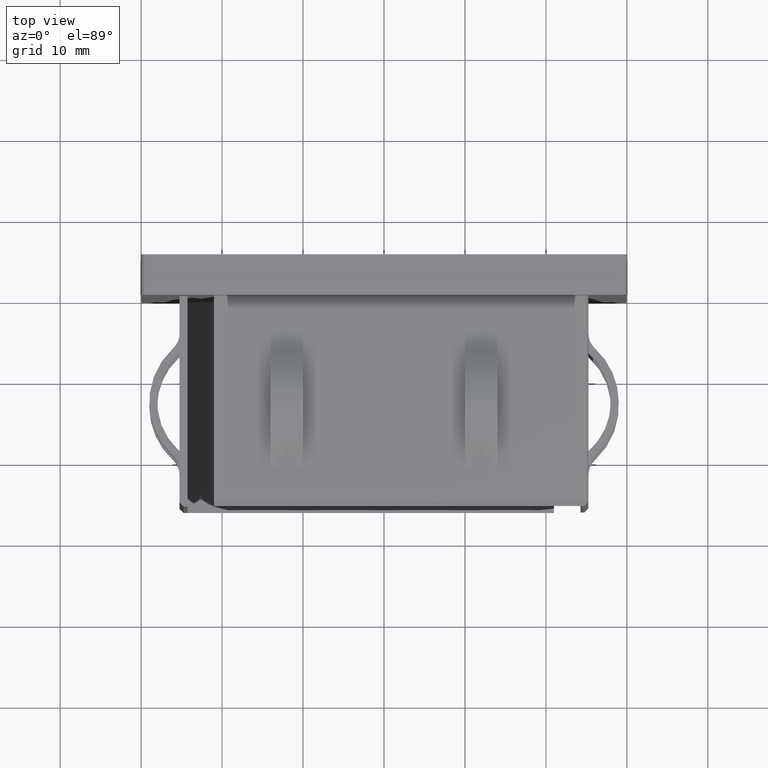
[diagram: clean part render]
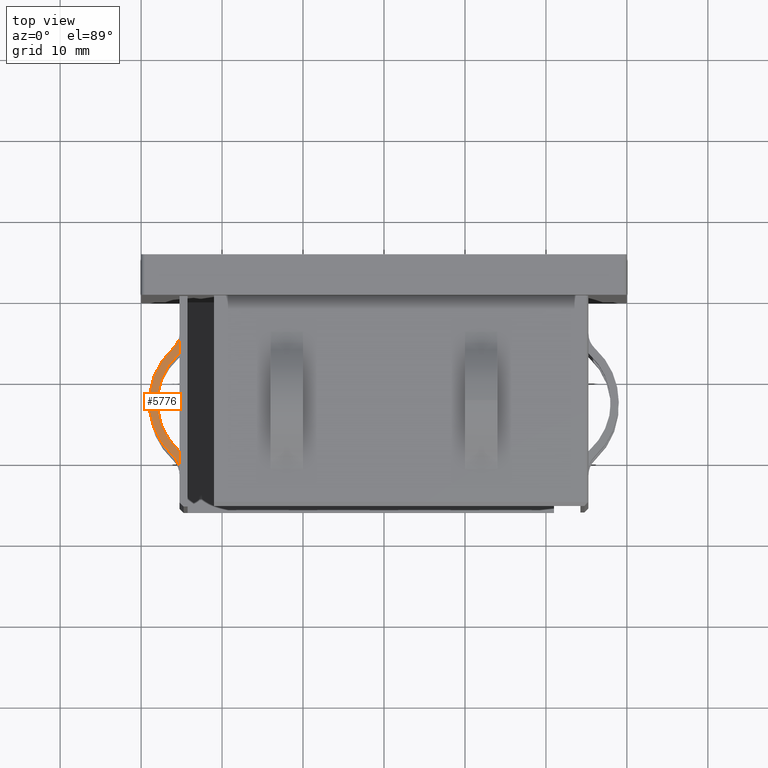
[diagram: same view with one face highlighted and labeled with its STEP entity id]
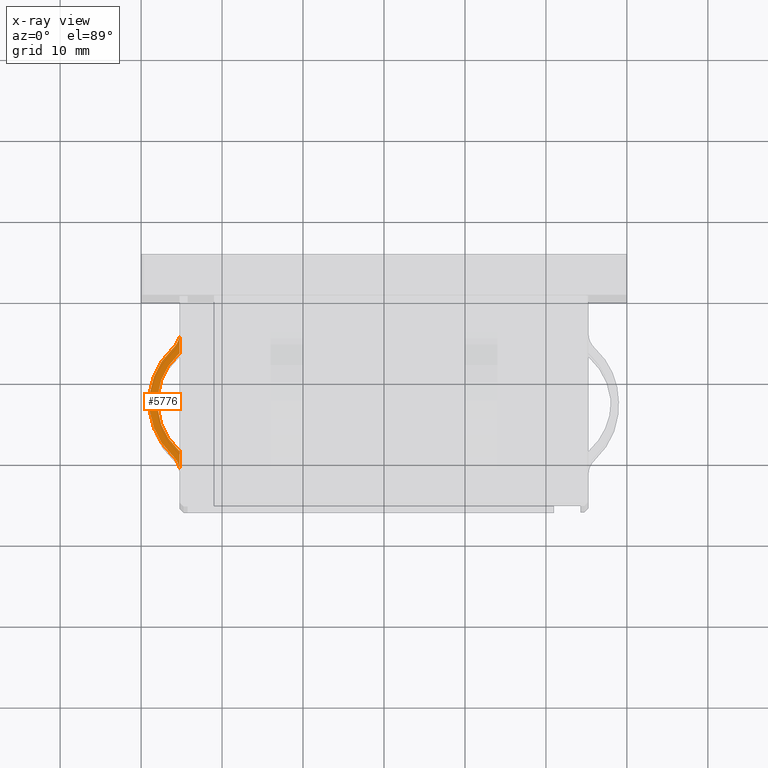
[diagram: x-ray of the same camera — body ghosted, the highlighted face saturated]
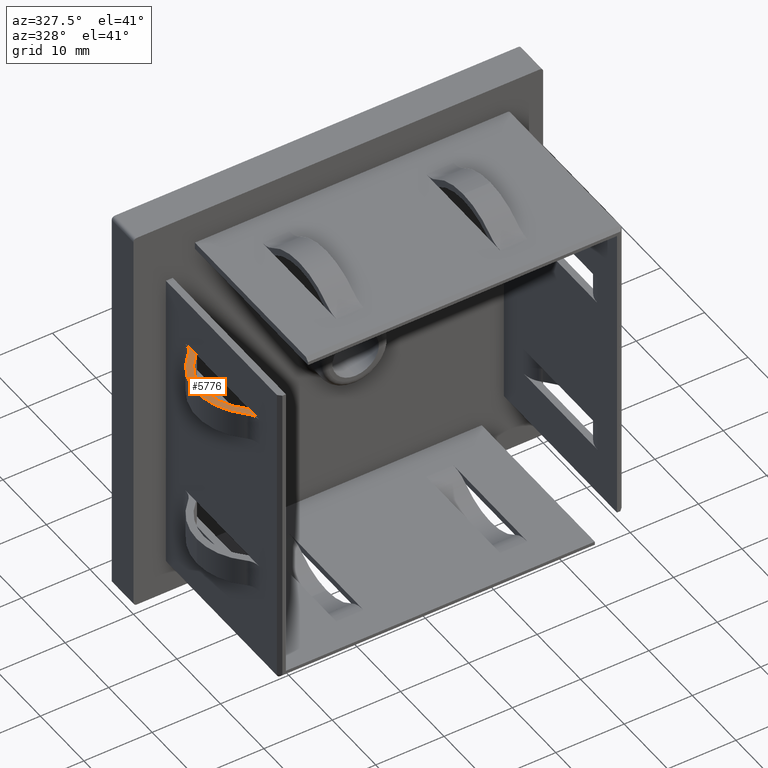
[diagram: same view with one face highlighted and labeled with its STEP entity id]
A machine part, top view. The second image highlights one B-rep face of the part: STEP entity #5776.
The next image is the same camera in x-ray: the body ghosted, the highlighted face saturated — about 0% of this face is hidden behind the body in this view.
A second angle (auxiliary view) of the same face is appended — the face is thin or edge-on in the first view.
In plain terms, the highlighted planar face has unit normal (0, 0, -1).
Its self-contained STEP definition (entity closure, byte-faithful):
#306 = CIRCLE ( 'NONE', #8349, 2.508333333333352000 ) ;
#1080 = DIRECTION ( 'NONE',  ( 2.154935995002244900E-016, 0.0000000000000000000, -1.000000000000000000 ) ) ;
#1129 = CARTESIAN_POINT ( 'NONE',  ( -25.24999999999999600, -4.500000000000000900, 13.99999999999999500 ) ) ;
#1685 = CARTESIAN_POINT ( 'NONE',  ( -25.39319333816076700, -18.90876176683562100, 13.99999999999999500 ) ) ;
#2529 = DIRECTION ( 'NONE',  ( 0.0000000000000000000, 1.000000000000000000, 0.0000000000000000000 ) ) ;
#2728 = EDGE_CURVE ( 'NONE', #8580, #12262, #7884, .T. ) ;
#3022 = EDGE_CURVE ( 'NONE', #5822, #14721, #9382, .T. ) ;
#3043 = EDGE_CURVE ( 'NONE', #14721, #13189, #15132, .T. ) ;
#3343 = ORIENTED_EDGE ( 'NONE', *, *, #3022, .F. ) ;
#3698 = DIRECTION ( 'NONE',  ( -1.000000000000000000, 0.0000000000000000000, 0.0000000000000000000 ) ) ;
#3760 = EDGE_CURVE ( 'NONE', #16318, #8580, #9802, .T. ) ;
#4066 = EDGE_CURVE ( 'NONE', #5822, #11193, #8472, .T. ) ;
#4807 = EDGE_CURVE ( 'NONE', #13189, #16864, #17724, .T. ) ;
#5229 = CARTESIAN_POINT ( 'NONE',  ( -27.75833333333335400, -4.499999999999996400, 13.99999999999999500 ) ) ;
#5520 = DIRECTION ( 'NONE',  ( 2.154935995002244900E-016, 0.0000000000000000000, -1.000000000000000000 ) ) ;
#5714 = CARTESIAN_POINT ( 'NONE',  ( -26.06734250543085800, -6.352643012309934000, 13.99999999999999500 ) ) ;
#5776 = ADVANCED_FACE ( 'NONE', ( #8200 ), #16086, .F. ) ;
#5822 = VERTEX_POINT ( 'NONE', #10692 ) ;
#5907 = DIRECTION ( 'NONE',  ( -1.000000000000000000, 0.0000000000000000000, 0.0000000000000000000 ) ) ;
#6049 = AXIS2_PLACEMENT_3D ( 'NONE', #13739, #5520, #8299 ) ;
#6527 = VECTOR ( 'NONE', #7001, 1000.000000000000000 ) ;
#6714 = ORIENTED_EDGE ( 'NONE', *, *, #4066, .T. ) ;
#6985 = CARTESIAN_POINT ( 'NONE',  ( -25.25000000000000700, -19.04711054740195000, 13.99999999999999500 ) ) ;
#7001 = DIRECTION ( 'NONE',  ( 0.0000000000000000000, 1.000000000000000000, 0.0000000000000000000 ) ) ;
#7049 = ORIENTED_EDGE ( 'NONE', *, *, #9044, .T. ) ;
#7884 = CIRCLE ( 'NONE', #6049, 2.508333333333352000 ) ;
#7887 = CARTESIAN_POINT ( 'NONE',  ( -25.39319333816076000, -7.091238233164392400, 13.99999999999999500 ) ) ;
#7936 = ORIENTED_EDGE ( 'NONE', *, *, #2728, .T. ) ;
#8191 = AXIS2_PLACEMENT_3D ( 'NONE', #9808, #10048, #16992 ) ;
#8200 = FACE_OUTER_BOUND ( 'NONE', #14657, .T. ) ;
#8217 = AXIS2_PLACEMENT_3D ( 'NONE', #13360, #14855, #10626 ) ;
#8299 = DIRECTION ( 'NONE',  ( -1.000000000000000000, 0.0000000000000000000, 0.0000000000000000000 ) ) ;
#8349 = AXIS2_PLACEMENT_3D ( 'NONE', #5229, #12156, #3698 ) ;
#8472 = LINE ( 'NONE', #13759, #14658 ) ;
#8580 = VERTEX_POINT ( 'NONE', #13048 ) ;
#8867 = DIRECTION ( 'NONE',  ( -2.154935995002244900E-016, -0.0000000000000000000, 1.000000000000000000 ) ) ;
#9044 = EDGE_CURVE ( 'NONE', #11193, #16318, #306, .T. ) ;
#9258 = ORIENTED_EDGE ( 'NONE', *, *, #17146, .T. ) ;
#9382 = CIRCLE ( 'NONE', #15280, 3.508333333333359900 ) ;
#9802 = CIRCLE ( 'NONE', #8191, 8.999999999999998200 ) ;
#9808 = CARTESIAN_POINT ( 'NONE',  ( -20.00000000000000000, -13.00000000000000500, 13.99999999999999600 ) ) ;
#10048 = DIRECTION ( 'NONE',  ( -2.154935995002244900E-016, -0.0000000000000000000, 1.000000000000000000 ) ) ;
#10626 = DIRECTION ( 'NONE',  ( -1.000000000000000000, 0.0000000000000000000, -2.154935995002244900E-016 ) ) ;
#10692 = CARTESIAN_POINT ( 'NONE',  ( -25.24999999999999600, -6.952889452598038900, 13.99999999999999500 ) ) ;
#11193 = VERTEX_POINT ( 'NONE', #1129 ) ;
#11263 = CARTESIAN_POINT ( 'NONE',  ( -27.75833333333335400, -4.499999999999996400, 13.99999999999999500 ) ) ;
#12156 = DIRECTION ( 'NONE',  ( 2.154935995002244900E-016, 0.0000000000000000000, -1.000000000000000000 ) ) ;
#12262 = VERTEX_POINT ( 'NONE', #13704 ) ;
#12938 = DIRECTION ( 'NONE',  ( 2.154935995002244900E-016, 0.0000000000000000000, -1.000000000000000000 ) ) ;
#13048 = CARTESIAN_POINT ( 'NONE',  ( -26.06734250543086200, -19.64735698769007400, 13.99999999999999500 ) ) ;
#13189 = VERTEX_POINT ( 'NONE', #1685 ) ;
#13244 = CARTESIAN_POINT ( 'NONE',  ( -20.00000000000000000, -13.00000000000000500, 13.99999999999999600 ) ) ;
#13340 = ORIENTED_EDGE ( 'NONE', *, *, #4807, .F. ) ;
#13360 = CARTESIAN_POINT ( 'NONE',  ( -3.016910393003143300E-015, 0.0000000000000000000, 14.00000000000000000 ) ) ;
#13654 = ORIENTED_EDGE ( 'NONE', *, *, #3043, .F. ) ;
#13704 = CARTESIAN_POINT ( 'NONE',  ( -25.24999999999999600, -21.50000000000000000, 13.99999999999999500 ) ) ;
#13725 = DIRECTION ( 'NONE',  ( -1.000000000000000000, 0.0000000000000000000, 0.0000000000000000000 ) ) ;
#13739 = CARTESIAN_POINT ( 'NONE',  ( -27.75833333333335800, -21.50000000000000000, 13.99999999999999500 ) ) ;
#13759 = CARTESIAN_POINT ( 'NONE',  ( -25.24999999999999600, 0.0000000000000000000, 13.99999999999999500 ) ) ;
#14657 = EDGE_LOOP ( 'NONE', ( #9258, #13340, #13654, #3343, #6714, #7049, #15069, #7936 ) ) ;
#14658 = VECTOR ( 'NONE', #2529, 1000.000000000000000 ) ;
#14714 = LINE ( 'NONE', #17004, #6527 ) ;
#14721 = VERTEX_POINT ( 'NONE', #7887 ) ;
#14855 = DIRECTION ( 'NONE',  ( 2.154935995002244900E-016, 0.0000000000000000000, -1.000000000000000000 ) ) ;
#14956 = AXIS2_PLACEMENT_3D ( 'NONE', #18157, #1080, #13725 ) ;
#15069 = ORIENTED_EDGE ( 'NONE', *, *, #3760, .T. ) ;
#15132 = CIRCLE ( 'NONE', #17409, 8.000000000000003600 ) ;
#15280 = AXIS2_PLACEMENT_3D ( 'NONE', #11263, #12938, #5907 ) ;
#16086 = PLANE ( 'NONE',  #8217 ) ;
#16318 = VERTEX_POINT ( 'NONE', #5714 ) ;
#16864 = VERTEX_POINT ( 'NONE', #6985 ) ;
#16992 = DIRECTION ( 'NONE',  ( -1.000000000000000000, 0.0000000000000000000, -1.927470528863119300E-016 ) ) ;
#17004 = CARTESIAN_POINT ( 'NONE',  ( -25.24999999999999600, 0.0000000000000000000, 13.99999999999999500 ) ) ;
#17146 = EDGE_CURVE ( 'NONE', #12262, #16864, #14714, .T. ) ;
#17409 = AXIS2_PLACEMENT_3D ( 'NONE', #13244, #8867, #17570 ) ;
#17570 = DIRECTION ( 'NONE',  ( -1.000000000000000000, 0.0000000000000000000, -2.168404344971007900E-016 ) ) ;
#17724 = CIRCLE ( 'NONE', #14956, 3.508333333333356400 ) ;
#18157 = CARTESIAN_POINT ( 'NONE',  ( -27.75833333333335800, -21.50000000000000000, 13.99999999999999500 ) ) ;